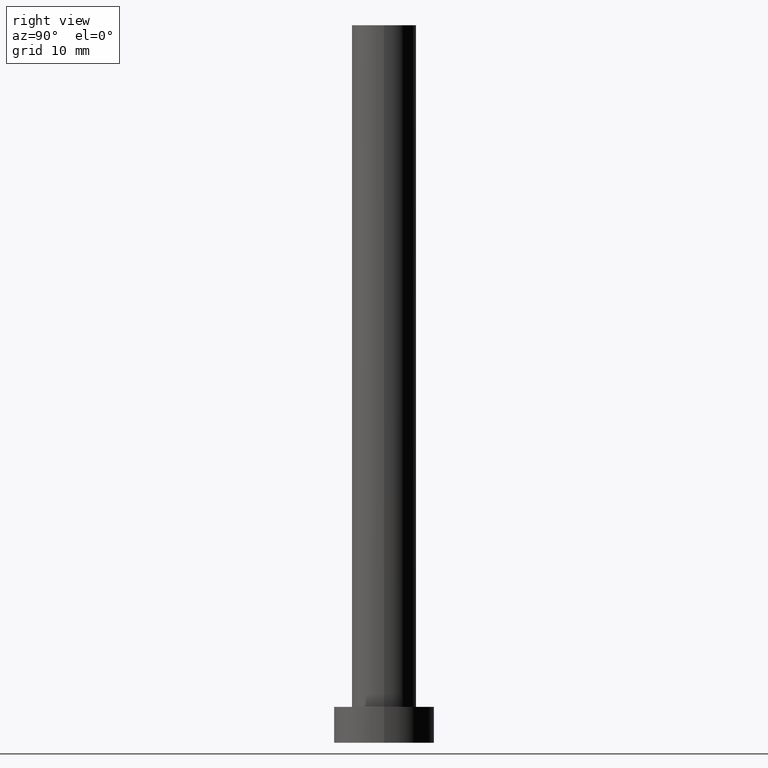
[diagram: clean part render]
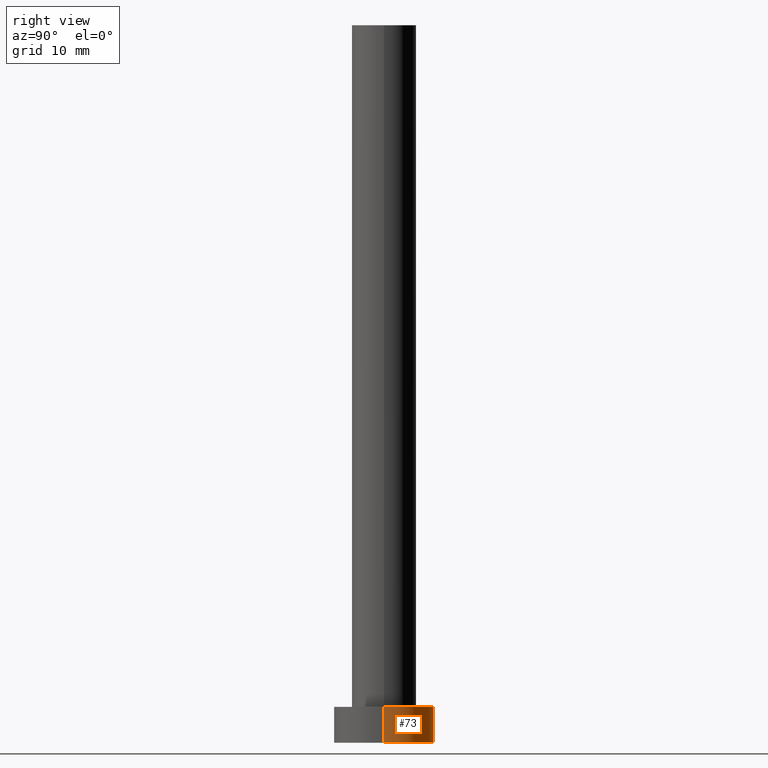
[diagram: same view with one face highlighted and labeled with its STEP entity id]
A machine part, right view. The second image highlights one B-rep face of the part: STEP entity #73.
In plain terms, the highlighted cylindrical surface (partial cylindrical patch) has radius 7 mm, axis along (-0, -0, -1).
Its self-contained STEP definition (entity closure, byte-faithful):
#1 = AXIS2_PLACEMENT_3D ( 'NONE', #224, #6, #155 ) ;
#6 = DIRECTION ( 'NONE',  ( 0.000000000000000000, 0.000000000000000000, 1.000000000000000000 ) ) ;
#8 = CARTESIAN_POINT ( 'NONE',  ( 7.000000000000000000, 8.572527594031473190E-16, 5.000000000000000000 ) ) ;
#10 = AXIS2_PLACEMENT_3D ( 'NONE', #125, #83, #46 ) ;
#19 = DIRECTION ( 'NONE',  ( -0.000000000000000000, -0.000000000000000000, -1.000000000000000000 ) ) ;
#26 = DIRECTION ( 'NONE',  ( -1.000000000000000000, 0.000000000000000000, 0.000000000000000000 ) ) ;
#28 = DIRECTION ( 'NONE',  ( -0.000000000000000000, -0.000000000000000000, -1.000000000000000000 ) ) ;
#32 = CARTESIAN_POINT ( 'NONE',  ( -7.000000000000000000, 0.000000000000000000, 5.000000000000000000 ) ) ;
#33 = VERTEX_POINT ( 'NONE', #107 ) ;
#35 = AXIS2_PLACEMENT_3D ( 'NONE', #157, #28, #26 ) ;
#46 = DIRECTION ( 'NONE',  ( 1.000000000000000000, 0.000000000000000000, 0.000000000000000000 ) ) ;
#48 = CYLINDRICAL_SURFACE ( 'NONE', #35, 7.000000000000000000 ) ;
#71 = VECTOR ( 'NONE', #19, 1000.000000000000000 ) ;
#73 = ADVANCED_FACE ( 'NONE', ( #146 ), #48, .T. ) ;
#83 = DIRECTION ( 'NONE',  ( 0.000000000000000000, 0.000000000000000000, 1.000000000000000000 ) ) ;
#93 = ORIENTED_EDGE ( 'NONE', *, *, #133, .F. ) ;
#103 = ORIENTED_EDGE ( 'NONE', *, *, #216, .F. ) ;
#107 = CARTESIAN_POINT ( 'NONE',  ( -7.000000000000000000, 0.000000000000000000, 5.000000000000000000 ) ) ;
#115 = ORIENTED_EDGE ( 'NONE', *, *, #153, .T. ) ;
#117 = LINE ( 'NONE', #215, #229 ) ;
#124 = VERTEX_POINT ( 'NONE', #179 ) ;
#125 = CARTESIAN_POINT ( 'NONE',  ( 0.000000000000000000, 0.000000000000000000, 5.000000000000000000 ) ) ;
#128 = VERTEX_POINT ( 'NONE', #8 ) ;
#129 = LINE ( 'NONE', #32, #71 ) ;
#133 = EDGE_CURVE ( 'NONE', #128, #33, #191, .T. ) ;
#146 = FACE_OUTER_BOUND ( 'NONE', #187, .T. ) ;
#153 = EDGE_CURVE ( 'NONE', #227, #124, #214, .T. ) ;
#155 = DIRECTION ( 'NONE',  ( 1.000000000000000000, 0.000000000000000000, 0.000000000000000000 ) ) ;
#157 = CARTESIAN_POINT ( 'NONE',  ( 0.000000000000000000, 0.000000000000000000, 5.000000000000000000 ) ) ;
#179 = CARTESIAN_POINT ( 'NONE',  ( -7.000000000000000000, 0.000000000000000000, 0.000000000000000000 ) ) ;
#187 = EDGE_LOOP ( 'NONE', ( #93, #197, #115, #103 ) ) ;
#191 = CIRCLE ( 'NONE', #10, 7.000000000000000000 ) ;
#193 = CARTESIAN_POINT ( 'NONE',  ( 7.000000000000000000, 8.572527594031473190E-16, 0.000000000000000000 ) ) ;
#194 = DIRECTION ( 'NONE',  ( -0.000000000000000000, -0.000000000000000000, -1.000000000000000000 ) ) ;
#197 = ORIENTED_EDGE ( 'NONE', *, *, #235, .T. ) ;
#214 = CIRCLE ( 'NONE', #1, 7.000000000000000000 ) ;
#215 = CARTESIAN_POINT ( 'NONE',  ( 7.000000000000000000, 8.572527594031473190E-16, 5.000000000000000000 ) ) ;
#216 = EDGE_CURVE ( 'NONE', #33, #124, #129, .T. ) ;
#224 = CARTESIAN_POINT ( 'NONE',  ( 0.000000000000000000, 0.000000000000000000, 0.000000000000000000 ) ) ;
#227 = VERTEX_POINT ( 'NONE', #193 ) ;
#229 = VECTOR ( 'NONE', #194, 1000.000000000000000 ) ;
#235 = EDGE_CURVE ( 'NONE', #128, #227, #117, .T. ) ;